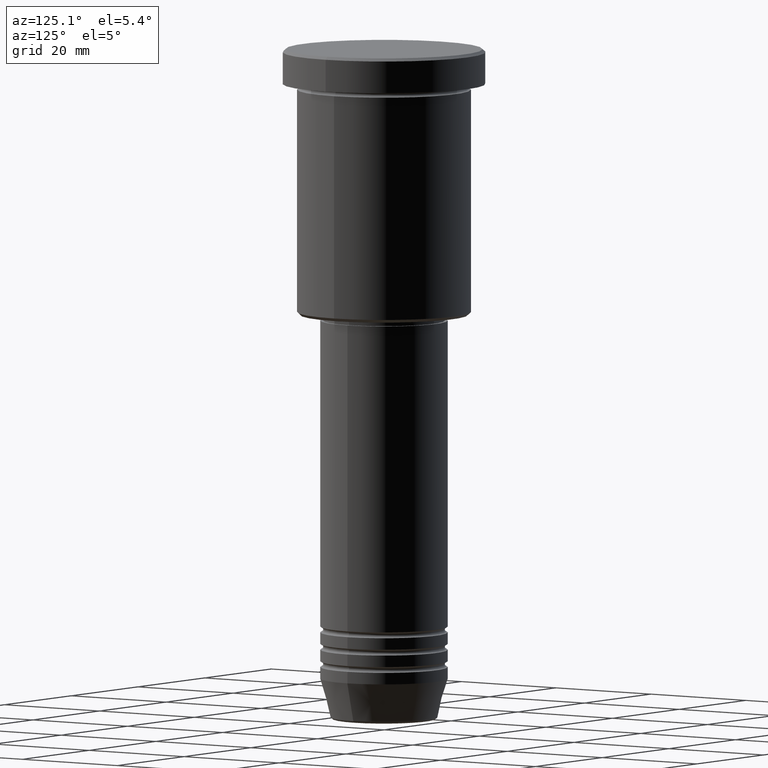
[diagram: clean part render]
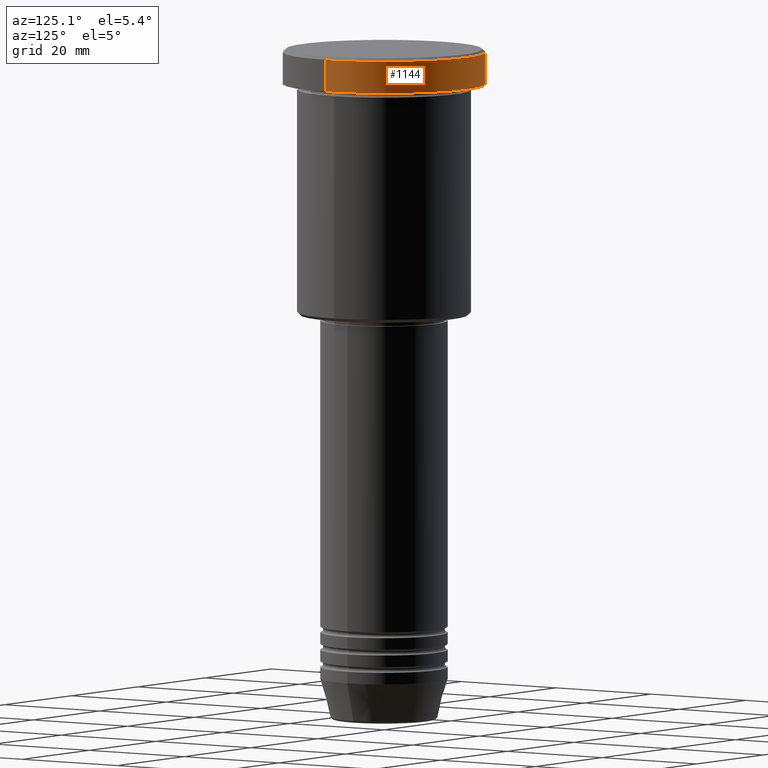
[diagram: same view with one face highlighted and labeled with its STEP entity id]
A machine part, auxiliary view. The second image highlights one B-rep face of the part: STEP entity #1144.
In plain terms, the highlighted cylindrical surface (partial cylindrical patch) has radius 17.5 mm, axis along (-0, -0, 1).
Its self-contained STEP definition (entity closure, byte-faithful):
#38 = ORIENTED_EDGE ( 'NONE', *, *, #783, .T. ) ;
#53 = EDGE_CURVE ( 'NONE', #185, #1070, #432, .T. ) ;
#135 = CARTESIAN_POINT ( 'NONE',  ( -17.50000000000000000, 2.143131898507868248E-15, 0.000000000000000000 ) ) ;
#145 = ORIENTED_EDGE ( 'NONE', *, *, #419, .T. ) ;
#185 = VERTEX_POINT ( 'NONE', #1138 ) ;
#229 = CARTESIAN_POINT ( 'NONE',  ( 0.000000000000000000, 0.000000000000000000, 0.000000000000000000 ) ) ;
#232 = LINE ( 'NONE', #135, #513 ) ;
#281 = VECTOR ( 'NONE', #1015, 1000.000000000000000 ) ;
#290 = DIRECTION ( 'NONE',  ( 0.000000000000000000, 0.000000000000000000, -1.000000000000000000 ) ) ;
#319 = CIRCLE ( 'NONE', #625, 17.50000000000000000 ) ;
#321 = FACE_OUTER_BOUND ( 'NONE', #696, .T. ) ;
#335 = DIRECTION ( 'NONE',  ( -0.000000000000000000, -0.000000000000000000, 1.000000000000000000 ) ) ;
#367 = CARTESIAN_POINT ( 'NONE',  ( -17.50000000000000000, 2.143131898507868248E-15, -0.5000000000000004441 ) ) ;
#379 = DIRECTION ( 'NONE',  ( -0.000000000000000000, -0.000000000000000000, 1.000000000000000000 ) ) ;
#410 = DIRECTION ( 'NONE',  ( 1.000000000000000000, 0.000000000000000000, 0.000000000000000000 ) ) ;
#419 = EDGE_CURVE ( 'NONE', #529, #1070, #319, .T. ) ;
#432 = LINE ( 'NONE', #789, #281 ) ;
#440 = AXIS2_PLACEMENT_3D ( 'NONE', #229, #335, #892 ) ;
#442 = CARTESIAN_POINT ( 'NONE',  ( -17.50000000000000000, 2.143131898507868248E-15, -5.999999999999995559 ) ) ;
#513 = VECTOR ( 'NONE', #616, 1000.000000000000000 ) ;
#529 = VERTEX_POINT ( 'NONE', #367 ) ;
#574 = ORIENTED_EDGE ( 'NONE', *, *, #1084, .T. ) ;
#616 = DIRECTION ( 'NONE',  ( -0.000000000000000000, -0.000000000000000000, 1.000000000000000000 ) ) ;
#625 = AXIS2_PLACEMENT_3D ( 'NONE', #650, #290, #908 ) ;
#650 = CARTESIAN_POINT ( 'NONE',  ( 0.000000000000000000, 0.000000000000000000, -0.5000000000000004441 ) ) ;
#687 = CYLINDRICAL_SURFACE ( 'NONE', #440, 17.50000000000000000 ) ;
#696 = EDGE_LOOP ( 'NONE', ( #574, #38, #145, #1029 ) ) ;
#783 = EDGE_CURVE ( 'NONE', #895, #529, #232, .T. ) ;
#789 = CARTESIAN_POINT ( 'NONE',  ( 17.50000000000000000, 0.000000000000000000, 0.000000000000000000 ) ) ;
#795 = AXIS2_PLACEMENT_3D ( 'NONE', #1043, #379, #410 ) ;
#892 = DIRECTION ( 'NONE',  ( 1.000000000000000000, 0.000000000000000000, 0.000000000000000000 ) ) ;
#895 = VERTEX_POINT ( 'NONE', #442 ) ;
#908 = DIRECTION ( 'NONE',  ( 1.000000000000000000, 0.000000000000000000, 0.000000000000000000 ) ) ;
#936 = CARTESIAN_POINT ( 'NONE',  ( 17.50000000000000000, 0.000000000000000000, -0.5000000000000004441 ) ) ;
#1015 = DIRECTION ( 'NONE',  ( -0.000000000000000000, -0.000000000000000000, 1.000000000000000000 ) ) ;
#1029 = ORIENTED_EDGE ( 'NONE', *, *, #53, .F. ) ;
#1043 = CARTESIAN_POINT ( 'NONE',  ( 0.000000000000000000, 0.000000000000000000, -5.999999999999995559 ) ) ;
#1060 = CIRCLE ( 'NONE', #795, 17.50000000000000000 ) ;
#1070 = VERTEX_POINT ( 'NONE', #936 ) ;
#1084 = EDGE_CURVE ( 'NONE', #185, #895, #1060, .T. ) ;
#1138 = CARTESIAN_POINT ( 'NONE',  ( 17.50000000000000000, 0.000000000000000000, -5.999999999999995559 ) ) ;
#1144 = ADVANCED_FACE ( 'NONE', ( #321 ), #687, .T. ) ;